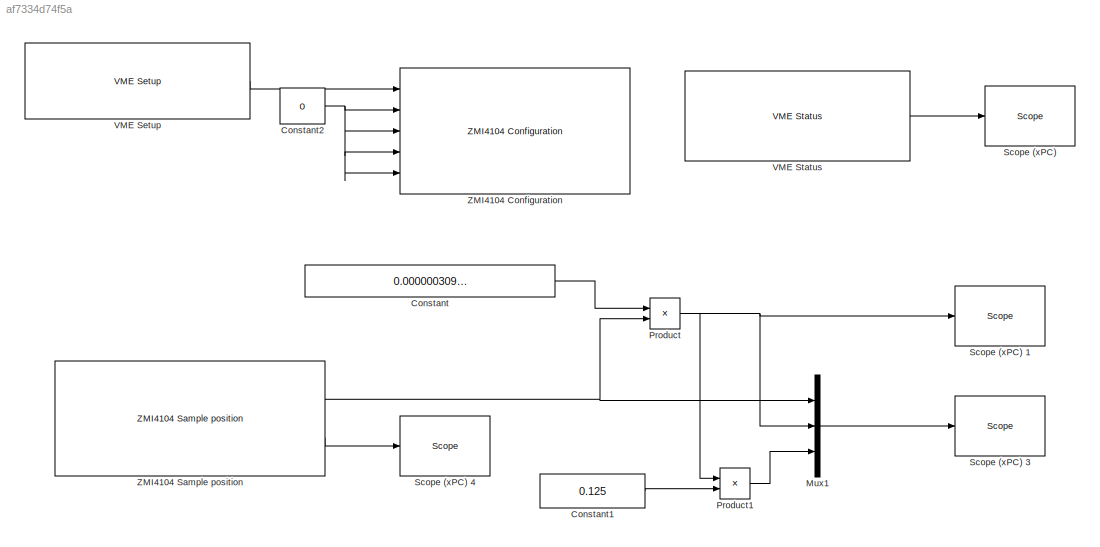
MODEL slx_af7334d74f5a
KIND model
BLOCK [Constant] Constant
  Value = 0.000000309077894531/1.000269
BLOCK [Constant] Constant1
  Value = 0.125
BLOCK [Constant] Constant2
  Value = 0
BLOCK [Mux] Mux1
  DisplayOption = bar
  Inputs = 3
  Ports = [3, 1]
BLOCK [Product] Product
  InputSameDT = off
  OutDataTypeStr = Inherit: Inherit via internal rule
  Ports = [2, 1]
  SaturateOnIntegerOverflow = off
BLOCK [Product] Product1
  InputSameDT = off
  OutDataTypeStr = Inherit: Inherit via internal rule
  Ports = [2, 1]
  SaturateOnIntegerOverflow = off
BLOCK [Reference] Scope (xPC)   REF=slrtlib/Displays and
Logging/Scope 
  Ports = [1]
  SourceBlock = slrtlib/Displays and\nLogging/Scope
  SourceType = xpcscopeblock
  autorestart = off
  autostart = on
  dynamicfilemode = off
  filename = data.dat
  formatstr = 'VME link error: %1.0f'
  grid = on
  interleave = 1
  maxwritefilesize = 512*1024^2
  mode = Lazy
  noprepostsamples = 0
  nosamples = 3
  scopeno = 1
  scopetype = Target
  triggerlevel = 0.0
  triggermode = FreeRun
  triggersample = 0
  triggerscope = 1
  triggersignal = 1
  triggerslope = Either
  trigsignalfromport = off
  viewmode = Numerical
  writesize = 512
  ylimits = [0,0]
BLOCK [Reference] Scope (xPC) 1  REF=slrtlib/Displays and
Logging/Scope 
  Ports = [1]
  SourceBlock = slrtlib/Displays and\nLogging/Scope
  SourceType = xpcscopeblock
  autorestart = off
  autostart = on
  dynamicfilemode = off
  filename = data.dat
  formatstr = 'Time: %15.6f'
  grid = on
  interleave = 1
  maxwritefilesize = 512*1024^2
  mode = Lazy
  noprepostsamples = 0
  nosamples = 250
  scopeno = 4
  scopetype = Target
  triggerlevel = 0.0
  triggermode = FreeRun
  triggersample = 0
  triggerscope = 1
  triggersignal = 1
  triggerslope = Either
  trigsignalfromport = off
  viewmode = Graphical redraw
  writesize = 512
  ylimits = [0,0]
BLOCK [Reference] Scope (xPC) 3  REF=slrtlib/Displays and
Logging/Scope 
  Ports = [1]
  SourceBlock = slrtlib/Displays and\nLogging/Scope
  SourceType = xpcscopeblock
  autorestart = off
  autostart = on
  dynamicfilemode = off
  filename = data.dat
  formatstr = 'Register value: %f,With your factor: %f,With 0.125 factor: %f'
  grid = on
  interleave = 1
  maxwritefilesize = 512*1024^2
  mode = Lazy
  noprepostsamples = 0
  nosamples = 10
  scopeno = 2
  scopetype = Target
  triggerlevel = 0.0
  triggermode = FreeRun
  triggersample = 0
  triggerscope = 1
  triggersignal = 1
  triggerslope = Either
  trigsignalfromport = off
  viewmode = Numerical
  writesize = 512
  ylimits = [0,0]
BLOCK [Reference] Scope (xPC) 4  REF=slrtlib/Displays and
Logging/Scope 
  Ports = [1]
  SourceBlock = slrtlib/Displays and\nLogging/Scope
  SourceType = xpcscopeblock
  autorestart = off
  autostart = on
  dynamicfilemode = off
  filename = data.dat
  formatstr = 'Time: %15.6f'
  grid = on
  interleave = 1
  maxwritefilesize = 512*1024^2
  mode = Lazy
  noprepostsamples = 0
  nosamples = 3
  scopeno = 3
  scopetype = Target
  triggerlevel = 0.0
  triggermode = FreeRun
  triggersample = 0
  triggerscope = 1
  triggersignal = 1
  triggerslope = Either
  trigsignalfromport = off
  viewmode = Numerical
  writesize = 512
  ylimits = [0,0]
BLOCK [Reference] VME Setup  REF=speedgoatlib_ZMI4104/VME Setup
  Ports = [0, 1]
  SourceBlock = speedgoatlib_ZMI4104/VME Setup
  SourceType = vmesetup_zmi4104
  id = 1
  modules = 1
  slot = -1
  z1_addr_sw1 = 0
  z1_addr_sw2 = 0
  z1_id = 1
  z2_addr_sw1 = 0
  z2_addr_sw2 = 1
  z2_id = 2
BLOCK [Reference] VME Status  REF=speedgoatlib_ZMI4104/VME Status
  Ports = [0, 1]
  SourceBlock = speedgoatlib_ZMI4104/VME Status
  SourceType = vmestatus_zmi4104
  id = 1
  slot = -1
  ts = -1
BLOCK [Reference] ZMI4104 Configuration  REF=speedgoatlib_ZMI4104/ZMI4104 Configuration
  Ports = [5]
  SourceBlock = speedgoatlib_ZMI4104/ZMI4104 Configuration
  SourceType = initaxis_zmi4104
  ax1_filter_kp = -8
  ax1_filter_kv = -19
  ax2_filter_kp = -8
  ax2_filter_kv = -19
  ax3_filter_kp = -8
  ax3_filter_kv = -19
  ax4_filter_kp = -8
  ax4_filter_kv = -19
  id = 1
  slot = -1
  ts = -1
BLOCK [Reference] ZMI4104 Sample position  REF=speedgoatlib_ZMI4104/ZMI4104 Sample position
  Ports = [0, 2]
  SourceBlock = speedgoatlib_ZMI4104/ZMI4104 Sample position
  SourceType = samplepos_zmi4104
  act_time = on
  act_vel = off
  axis = 1
  id = 1
  slot = -1
  ts = -1
  zmi_id = 1
LINE Constant1:1 -> Product1:2
NET Constant2:1 -> ZMI4104 Configuration:2, ZMI4104 Configuration:3, ZMI4104 Configuration:4, ZMI4104 Configuration:5
LINE Constant:1 -> Product:1
LINE Mux1:1 -> Scope (xPC) 3:1
LINE Product1:1 -> Mux1:3
NET Product:1 -> Mux1:2, Product1:1, Scope (xPC) 1:1
LINE VME Setup:1 -> ZMI4104 Configuration:1
LINE VME Status:1 -> Scope (xPC) :1
NET ZMI4104 Sample position:1 -> Mux1:1, Product:2
LINE ZMI4104 Sample position:2 -> Scope (xPC) 4:1
note: NET lines group one-source signal fan-out (src -> all destinations, sorted); 1:1 wires keep LINE
